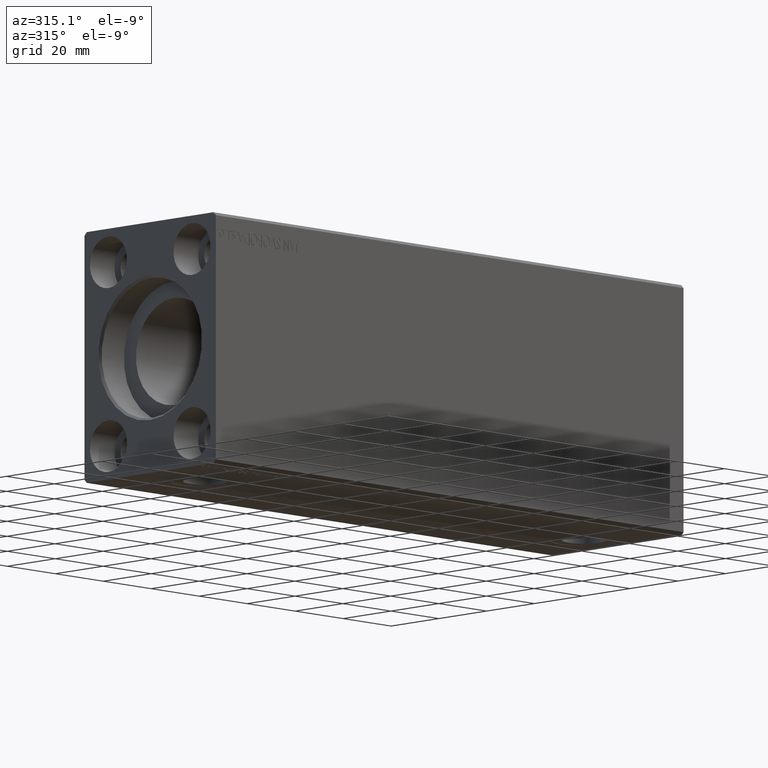
[diagram: clean part render]
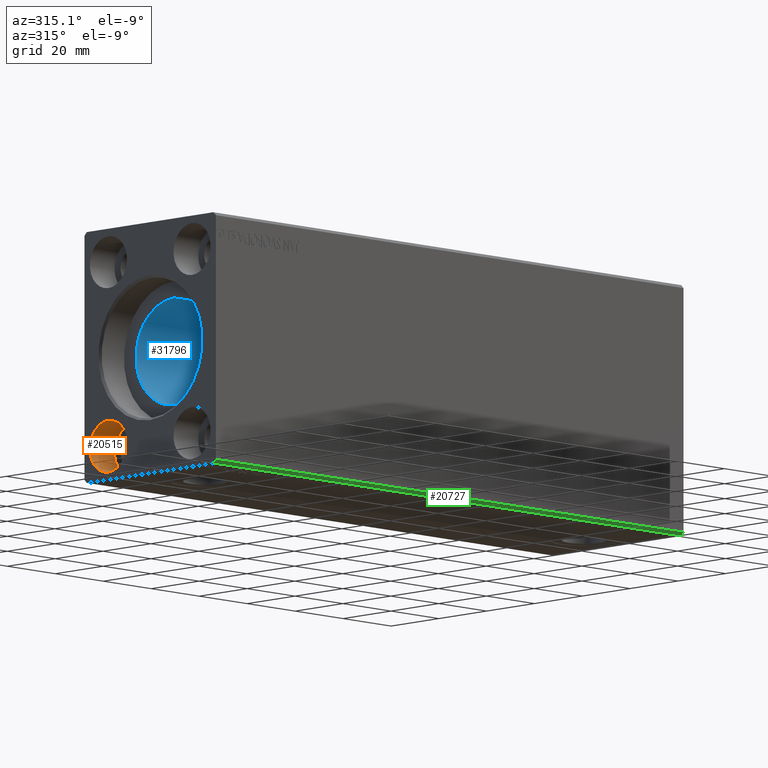
[diagram: same view with three faces highlighted in distinct colors, each labeled with its STEP entity id]
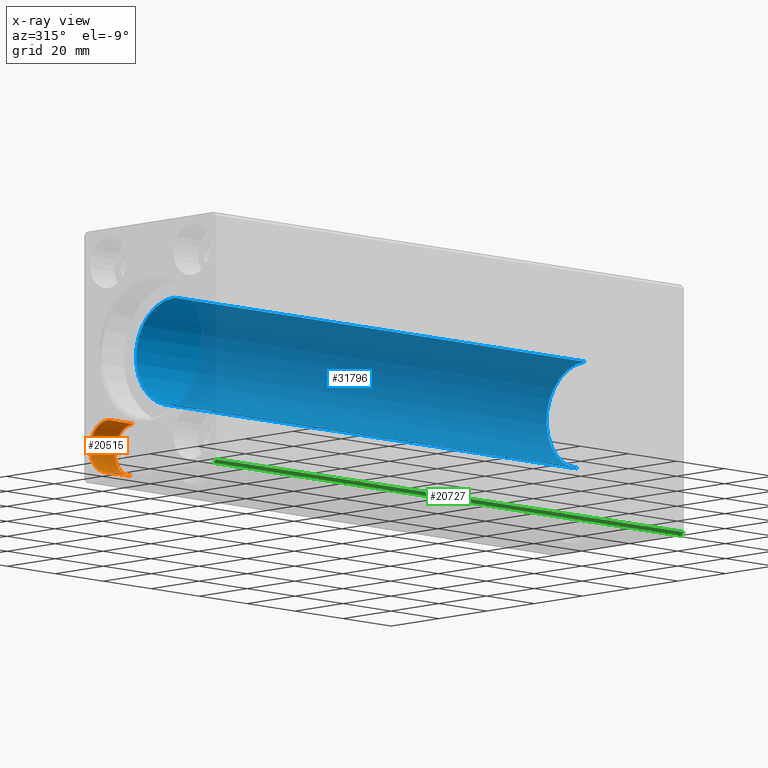
[diagram: x-ray of the same camera — body ghosted, the three highlighted faces saturated]
A machine part, auxiliary view with three faces highlighted in distinct colors.
The next image is the same camera in x-ray (body ghosted, the three faces saturated) — at least one of them is partly hidden behind the body in this view.
Their STEP definitions:

[orange] entity #20515 — the highlighted cylindrical surface (edge-blend (fillet) strip) has radius 7.75 mm, axis along (-1, -0, -0).
#143 = EDGE_LOOP ( 'NONE', ( #38138, #2351, #14078, #18632 ) ) ;
#2351 = ORIENTED_EDGE ( 'NONE', *, *, #10108, .F. ) ;
#2482 = CYLINDRICAL_SURFACE ( 'NONE', #7221, 7.750000000000003553 ) ;
#2798 = EDGE_CURVE ( 'NONE', #13599, #19383, #11059, .T. ) ;
#2849 = EDGE_CURVE ( 'NONE', #6873, #13599, #19694, .T. ) ;
#3434 = EDGE_CURVE ( 'NONE', #12572, #19383, #5357, .T. ) ;
#5357 = LINE ( 'NONE', #18499, #42046 ) ;
#6873 = VERTEX_POINT ( 'NONE', #30602 ) ;
#7221 = AXIS2_PLACEMENT_3D ( 'NONE', #8934, #35232, #28770 ) ;
#7436 = CARTESIAN_POINT ( 'NONE',  ( 0.000000000000000000, 17.50000000000000000, -27.50000000000000000 ) ) ;
#8271 = AXIS2_PLACEMENT_3D ( 'NONE', #7436, #33719, #17356 ) ;
#8934 = CARTESIAN_POINT ( 'NONE',  ( 10.33000000000000007, 17.50000000000000000, -27.50000000000000000 ) ) ;
#9764 = DIRECTION ( 'NONE',  ( -1.000000000000000000, -0.000000000000000000, -0.000000000000000000 ) ) ;
#10108 = EDGE_CURVE ( 'NONE', #6873, #12572, #24857, .T. ) ;
#10412 = CARTESIAN_POINT ( 'NONE',  ( 10.33000000000000007, 17.50000000000000000, -27.50000000000000000 ) ) ;
#11059 = CIRCLE ( 'NONE', #8271, 7.750000000000003553 ) ;
#12572 = VERTEX_POINT ( 'NONE', #23815 ) ;
#13599 = VERTEX_POINT ( 'NONE', #19325 ) ;
#14078 = ORIENTED_EDGE ( 'NONE', *, *, #2849, .T. ) ;
#17356 = DIRECTION ( 'NONE',  ( 0.000000000000000000, 0.000000000000000000, 1.000000000000000000 ) ) ;
#18499 = CARTESIAN_POINT ( 'NONE',  ( 10.33000000000000007, 17.50000000000000000, -35.25000000000000000 ) ) ;
#18632 = ORIENTED_EDGE ( 'NONE', *, *, #2798, .T. ) ;
#19325 = CARTESIAN_POINT ( 'NONE',  ( 0.000000000000000000, 17.50000000000000000, -19.74999999999999645 ) ) ;
#19383 = VERTEX_POINT ( 'NONE', #21813 ) ;
#19694 = LINE ( 'NONE', #33039, #39281 ) ;
#20515 = ADVANCED_FACE ( 'NONE', ( #24895 ), #2482, .F. ) ;
#20770 = AXIS2_PLACEMENT_3D ( 'NONE', #10412, #32842, #23571 ) ;
#21813 = CARTESIAN_POINT ( 'NONE',  ( 0.000000000000000000, 17.50000000000000000, -35.25000000000000000 ) ) ;
#23571 = DIRECTION ( 'NONE',  ( 0.000000000000000000, 0.000000000000000000, 1.000000000000000000 ) ) ;
#23815 = CARTESIAN_POINT ( 'NONE',  ( 10.33000000000000007, 17.50000000000000000, -35.25000000000000000 ) ) ;
#24857 = CIRCLE ( 'NONE', #20770, 7.750000000000003553 ) ;
#24895 = FACE_OUTER_BOUND ( 'NONE', #143, .T. ) ;
#28770 = DIRECTION ( 'NONE',  ( 0.000000000000000000, 0.000000000000000000, 1.000000000000000000 ) ) ;
#30602 = CARTESIAN_POINT ( 'NONE',  ( 10.33000000000000007, 17.50000000000000000, -19.74999999999999645 ) ) ;
#31641 = DIRECTION ( 'NONE',  ( -1.000000000000000000, -0.000000000000000000, -0.000000000000000000 ) ) ;
#32842 = DIRECTION ( 'NONE',  ( -1.000000000000000000, 0.000000000000000000, 0.000000000000000000 ) ) ;
#33039 = CARTESIAN_POINT ( 'NONE',  ( 10.33000000000000007, 17.50000000000000000, -19.74999999999999645 ) ) ;
#33719 = DIRECTION ( 'NONE',  ( -1.000000000000000000, 0.000000000000000000, 0.000000000000000000 ) ) ;
#35232 = DIRECTION ( 'NONE',  ( -1.000000000000000000, -0.000000000000000000, -0.000000000000000000 ) ) ;
#38138 = ORIENTED_EDGE ( 'NONE', *, *, #3434, .F. ) ;
#39281 = VECTOR ( 'NONE', #9764, 1000.000000000000000 ) ;
#42046 = VECTOR ( 'NONE', #31641, 1000.000000000000000 ) ;

[blue] entity #31796 — the highlighted cylindrical surface (partial cylindrical patch) has radius 16 mm, axis along (-1, -0, -0).
#204 = ORIENTED_EDGE ( 'NONE', *, *, #18325, .T. ) ;
#758 = VERTEX_POINT ( 'NONE', #5611 ) ;
#1371 = CARTESIAN_POINT ( 'NONE',  ( 20.54529199024537789, 1.250171241089528928, -15.95169574138015278 ) ) ;
#1505 = EDGE_CURVE ( 'NONE', #14035, #6129, #15142, .T. ) ;
#2585 = CARTESIAN_POINT ( 'NONE',  ( 178.2643523021425267, 0.3237335850403372794, -15.99751506009604007 ) ) ;
#2662 = VERTEX_POINT ( 'NONE', #26414 ) ;
#2797 = CARTESIAN_POINT ( 'NONE',  ( 178.8030230027347045, 1.662044306363392954, -15.91393043707981647 ) ) ;
#2923 = CARTESIAN_POINT ( 'NONE',  ( 25.67843830749630740, 0.6438297815899759469, -15.98783114994251697 ) ) ;
#3460 = DIRECTION ( 'NONE',  ( -1.000000000000000000, -0.000000000000000000, -0.000000000000000000 ) ) ;
#4185 = CARTESIAN_POINT ( 'NONE',  ( 20.36400824168861234, 0.8002234119869107154, -15.98070334047259777 ) ) ;
#4609 = CARTESIAN_POINT ( 'NONE',  ( 20.25000000000000000, 0.1628529246558463039, -16.00000000000000000 ) ) ;
#5611 = CARTESIAN_POINT ( 'NONE',  ( 20.25000000000000000, 1.952197298178576320E-15, -16.00000000000000000 ) ) ;
#5822 = CARTESIAN_POINT ( 'NONE',  ( 178.2500000000000000, 0.1628529246558443611, -15.99999999999999645 ) ) ;
#6129 = VERTEX_POINT ( 'NONE', #38700 ) ;
#6443 = LINE ( 'NONE', #13119, #34561 ) ;
#6630 = CARTESIAN_POINT ( 'NONE',  ( 20.32103554224154607, 0.6416550435731651625, -15.98791951246752241 ) ) ;
#6699 = LINE ( 'NONE', #16401, #41325 ) ;
#6884 = DIRECTION ( 'NONE',  ( -1.000000000000000000, -0.000000000000000000, -0.000000000000000000 ) ) ;
#7878 = DIRECTION ( 'NONE',  ( 0.000000000000000000, 0.000000000000000000, 1.000000000000000000 ) ) ;
#8889 = CARTESIAN_POINT ( 'NONE',  ( 181.1999999999999886, 0.000000000000000000, 0.000000000000000000 ) ) ;
#9859 = CARTESIAN_POINT ( 'NONE',  ( 20.70828422114123057, 1.528580496451064752, -15.92742812959714982 ) ) ;
#10116 = CARTESIAN_POINT ( 'NONE',  ( 181.1999999999999886, 0.000000000000000000, 0.000000000000000000 ) ) ;
#10167 = CARTESIAN_POINT ( 'NONE',  ( 181.1999999999999886, 1.786057109949259036, -15.89999999999998970 ) ) ;
#11883 = AXIS2_PLACEMENT_3D ( 'NONE', #33537, #37815, #7878 ) ;
#12066 = CARTESIAN_POINT ( 'NONE',  ( 178.7082842211412412, 1.528580496451069415, -15.92742812959714982 ) ) ;
#12099 = EDGE_CURVE ( 'NONE', #22968, #28517, #22582, .T. ) ;
#13119 = CARTESIAN_POINT ( 'NONE',  ( 181.1999999999999886, 1.959434878635765131E-15, -16.00000000000000000 ) ) ;
#14035 = VERTEX_POINT ( 'NONE', #36625 ) ;
#14449 = EDGE_CURVE ( 'NONE', #2662, #23084, #41484, .T. ) ;
#14519 = CARTESIAN_POINT ( 'NONE',  ( 20.80302300273467964, 1.662044306363391177, -15.91393043707981292 ) ) ;
#14545 = CARTESIAN_POINT ( 'NONE',  ( 20.90894763336742912, 1.786057109949259036, -15.89999999999998970 ) ) ;
#15142 = CIRCLE ( 'NONE', #40631, 16.00000000000000000 ) ;
#16077 = CARTESIAN_POINT ( 'NONE',  ( 25.63617786229477957, 0.7997846173174859574, -15.98073294566550473 ) ) ;
#16401 = CARTESIAN_POINT ( 'NONE',  ( 181.1999999999999886, 1.959434878635765131E-15, -16.00000000000000000 ) ) ;
#18096 = ORIENTED_EDGE ( 'NONE', *, *, #32173, .F. ) ;
#18325 = EDGE_CURVE ( 'NONE', #38095, #39681, #42526, .T. ) ;
#18758 = CARTESIAN_POINT ( 'NONE',  ( 178.9089476333674327, 1.786057109949259036, -15.89999999999998970 ) ) ;
#19461 = DIRECTION ( 'NONE',  ( -1.000000000000000000, -0.000000000000000000, -0.000000000000000000 ) ) ;
#20035 = DIRECTION ( 'NONE',  ( 0.000000000000000000, 0.000000000000000000, 1.000000000000000000 ) ) ;
#20407 = VECTOR ( 'NONE', #33985, 1000.000000000000000 ) ;
#21051 = LINE ( 'NONE', #34390, #20407 ) ;
#21195 = EDGE_CURVE ( 'NONE', #14035, #2662, #21051, .T. ) ;
#21564 = EDGE_LOOP ( 'NONE', ( #21942, #204, #18096, #22187, #41128, #28436, #32856, #39837, #30771, #42641 ) ) ;
#21855 = EDGE_CURVE ( 'NONE', #758, #28517, #41855, .T. ) ;
#21942 = ORIENTED_EDGE ( 'NONE', *, *, #35174, .F. ) ;
#22187 = ORIENTED_EDGE ( 'NONE', *, *, #1505, .F. ) ;
#22582 = LINE ( 'NONE', #38759, #29747 ) ;
#22737 = CARTESIAN_POINT ( 'NONE',  ( 25.73536268302067853, 0.3260974502564771282, -15.99746611559688780 ) ) ;
#22968 = VERTEX_POINT ( 'NONE', #31523 ) ;
#23084 = VERTEX_POINT ( 'NONE', #42272 ) ;
#24002 = CARTESIAN_POINT ( 'NONE',  ( 20.25000000000000000, 1.952197298178576320E-15, -16.00000000000000000 ) ) ;
#25112 = CARTESIAN_POINT ( 'NONE',  ( 25.09105236663257088, 1.786057109949259036, -15.89999999999998970 ) ) ;
#26414 = CARTESIAN_POINT ( 'NONE',  ( 10.00000000000000888, 0.000000000000000000, 16.00000000000000000 ) ) ;
#26497 = FACE_OUTER_BOUND ( 'NONE', #21564, .T. ) ;
#27660 = CARTESIAN_POINT ( 'NONE',  ( 20.90894763336742912, 1.786057109949259036, -15.89999999999998970 ) ) ;
#28296 = DIRECTION ( 'NONE',  ( 0.000000000000000000, 0.000000000000000000, 1.000000000000000000 ) ) ;
#28436 = ORIENTED_EDGE ( 'NONE', *, *, #14449, .T. ) ;
#28517 = VERTEX_POINT ( 'NONE', #14545 ) ;
#28991 = CARTESIAN_POINT ( 'NONE',  ( 25.30299467954352011, 1.537922561208759253, -15.92787311163533914 ) ) ;
#29106 = CARTESIAN_POINT ( 'NONE',  ( 178.3210355422414750, 0.6416550435731682711, -15.98791951246751886 ) ) ;
#29220 = CARTESIAN_POINT ( 'NONE',  ( 25.75000000000000355, 0.1629275007895856497, -16.00000000000000000 ) ) ;
#29659 = EDGE_CURVE ( 'NONE', #758, #23084, #6699, .T. ) ;
#29684 = VECTOR ( 'NONE', #19461, 1000.000000000000000 ) ;
#29747 = VECTOR ( 'NONE', #35300, 1000.000000000000000 ) ;
#30771 = ORIENTED_EDGE ( 'NONE', *, *, #12099, .F. ) ;
#31463 = CARTESIAN_POINT ( 'NONE',  ( 178.4763581403533124, 1.104555034037125516, -15.96255602784426486 ) ) ;
#31523 = CARTESIAN_POINT ( 'NONE',  ( 25.09105236663257088, 1.786057109949259036, -15.89999999999998970 ) ) ;
#31718 = AXIS2_PLACEMENT_3D ( 'NONE', #10116, #6884, #20035 ) ;
#31796 = ADVANCED_FACE ( 'NONE', ( #26497 ), #39655, .F. ) ;
#32173 = EDGE_CURVE ( 'NONE', #6129, #39681, #32365, .T. ) ;
#32365 = LINE ( 'NONE', #10167, #29684 ) ;
#32487 = EDGE_CURVE ( 'NONE', #22968, #42411, #37285, .T. ) ;
#32856 = ORIENTED_EDGE ( 'NONE', *, *, #29659, .F. ) ;
#33004 = CARTESIAN_POINT ( 'NONE',  ( 178.2500000000000000, 1.952197214168045357E-15, -16.00000000000000000 ) ) ;
#33537 = CARTESIAN_POINT ( 'NONE',  ( 10.00000000000000888, 0.000000000000000000, 0.000000000000000000 ) ) ;
#33927 = CARTESIAN_POINT ( 'NONE',  ( 20.26435230214253380, 0.3237335850403343929, -15.99751506009603652 ) ) ;
#33985 = DIRECTION ( 'NONE',  ( -1.000000000000000000, -0.000000000000000000, -0.000000000000000000 ) ) ;
#34390 = CARTESIAN_POINT ( 'NONE',  ( 181.1999999999999886, 0.000000000000000000, 16.00000000000000000 ) ) ;
#34561 = VECTOR ( 'NONE', #39428, 1000.000000000000000 ) ;
#35118 = CARTESIAN_POINT ( 'NONE',  ( 178.2500000000000000, 1.952197214168045357E-15, -16.00000000000000000 ) ) ;
#35174 = EDGE_CURVE ( 'NONE', #38095, #42411, #6443, .T. ) ;
#35300 = DIRECTION ( 'NONE',  ( -1.000000000000000000, -0.000000000000000000, -0.000000000000000000 ) ) ;
#35613 = DIRECTION ( 'NONE',  ( -1.000000000000000000, 0.000000000000000000, 0.000000000000000000 ) ) ;
#36625 = CARTESIAN_POINT ( 'NONE',  ( 181.1999999999999886, 0.000000000000000000, 16.00000000000000000 ) ) ;
#37285 = B_SPLINE_CURVE_WITH_KNOTS ( 'NONE', 3,
 ( #25112, #28991, #42155, #16077, #2923, #22737, #29220, #42372 ),
 .UNSPECIFIED., .F., .F.,
 ( 4, 2, 2, 4 ),
 ( 0.000000000000000000, 0.0009687575396886391509, 0.001453136309532957046, 0.001937515079377275266 ),
 .UNSPECIFIED. ) ;
#37815 = DIRECTION ( 'NONE',  ( -1.000000000000000000, 0.000000000000000000, 0.000000000000000000 ) ) ;
#38095 = VERTEX_POINT ( 'NONE', #33004 ) ;
#38152 = CARTESIAN_POINT ( 'NONE',  ( 178.3640082416886230, 0.8002234119869096052, -15.98070334047259777 ) ) ;
#38700 = CARTESIAN_POINT ( 'NONE',  ( 181.1999999999999886, 1.786057109949259036, -15.89999999999998970 ) ) ;
#38759 = CARTESIAN_POINT ( 'NONE',  ( 181.1999999999999886, 1.786057109949259036, -15.89999999999998970 ) ) ;
#39010 = CARTESIAN_POINT ( 'NONE',  ( 178.5452919902453743, 1.250171241089533591, -15.95169574138015633 ) ) ;
#39185 = CARTESIAN_POINT ( 'NONE',  ( 25.75000000000000000, 1.966672448372719994E-15, -16.00000000000000000 ) ) ;
#39428 = DIRECTION ( 'NONE',  ( -1.000000000000000000, -0.000000000000000000, -0.000000000000000000 ) ) ;
#39655 = CYLINDRICAL_SURFACE ( 'NONE', #31718, 16.00000000000000000 ) ;
#39681 = VERTEX_POINT ( 'NONE', #40683 ) ;
#39837 = ORIENTED_EDGE ( 'NONE', *, *, #21855, .T. ) ;
#40631 = AXIS2_PLACEMENT_3D ( 'NONE', #8889, #35613, #28296 ) ;
#40683 = CARTESIAN_POINT ( 'NONE',  ( 178.9089476333674327, 1.786057109949259036, -15.89999999999998970 ) ) ;
#40821 = CARTESIAN_POINT ( 'NONE',  ( 20.47635814035335855, 1.104555034037125516, -15.96255602784426841 ) ) ;
#41128 = ORIENTED_EDGE ( 'NONE', *, *, #21195, .T. ) ;
#41325 = VECTOR ( 'NONE', #3460, 1000.000000000000000 ) ;
#41484 = CIRCLE ( 'NONE', #11883, 16.00000000000000000 ) ;
#41855 = B_SPLINE_CURVE_WITH_KNOTS ( 'NONE', 3,
 ( #24002, #4609, #33927, #6630, #4185, #40821, #1371, #9859, #14519, #27660 ),
 .UNSPECIFIED., .F., .F.,
 ( 4, 2, 2, 2, 4 ),
 ( 0.001937515079377276567, 0.002421672136522722528, 0.002905829193668168706, 0.003389986250813614450, 0.003874143307959060194 ),
 .UNSPECIFIED. ) ;
#42155 = CARTESIAN_POINT ( 'NONE',  ( 25.46669777805105639, 1.258673386848676135, -15.95335904956524864 ) ) ;
#42272 = CARTESIAN_POINT ( 'NONE',  ( 10.00000000000000888, 1.959434878635765131E-15, -16.00000000000000000 ) ) ;
#42372 = CARTESIAN_POINT ( 'NONE',  ( 25.75000000000000000, 1.966672448372719994E-15, -16.00000000000000000 ) ) ;
#42411 = VERTEX_POINT ( 'NONE', #39185 ) ;
#42526 = B_SPLINE_CURVE_WITH_KNOTS ( 'NONE', 3,
 ( #35118, #5822, #2585, #29106, #38152, #31463, #39010, #12066, #2797, #18758 ),
 .UNSPECIFIED., .F., .F.,
 ( 4, 2, 2, 2, 4 ),
 ( 0.001937515079377271580, 0.002421672136522718191, 0.002905829193668164369, 0.003389986250813610980, 0.003874143307959057592 ),
 .UNSPECIFIED. ) ;
#42641 = ORIENTED_EDGE ( 'NONE', *, *, #32487, .T. ) ;

[green] entity #20727 — the highlighted planar face has unit normal (-0, 0.7071, 0.7071).
#374 = CARTESIAN_POINT ( 'NONE',  ( 195.0000000000000000, -27.50000000000000355, -36.49999999999998579 ) ) ;
#1918 = CARTESIAN_POINT ( 'NONE',  ( 195.0000000000000000, -26.50000000000000355, -37.49999999999999289 ) ) ;
#2383 = ORIENTED_EDGE ( 'NONE', *, *, #22655, .T. ) ;
#3033 = CARTESIAN_POINT ( 'NONE',  ( 0.000000000000000000, -27.50000000000000355, -36.49999999999998579 ) ) ;
#4450 = DIRECTION ( 'NONE',  ( 0.000000000000000000, 0.7071067811865451302, -0.7071067811865500152 ) ) ;
#5388 = VECTOR ( 'NONE', #27094, 1000.000000000000114 ) ;
#5841 = VERTEX_POINT ( 'NONE', #3033 ) ;
#5932 = AXIS2_PLACEMENT_3D ( 'NONE', #18973, #19411, #35122 ) ;
#10170 = VERTEX_POINT ( 'NONE', #28053 ) ;
#11058 = DIRECTION ( 'NONE',  ( -1.000000000000000000, -0.000000000000000000, -0.000000000000000000 ) ) ;
#11478 = LINE ( 'NONE', #37369, #25017 ) ;
#11613 = LINE ( 'NONE', #1918, #29655 ) ;
#13683 = CARTESIAN_POINT ( 'NONE',  ( 195.0000000000000000, -26.50000000000000355, -37.49999999999999289 ) ) ;
#13958 = CARTESIAN_POINT ( 'NONE',  ( 0.000000000000000000, -27.50000000000000355, -36.49999999999998579 ) ) ;
#14094 = CARTESIAN_POINT ( 'NONE',  ( 0.000000000000000000, -26.50000000000000355, -37.49999999999999289 ) ) ;
#16390 = PLANE ( 'NONE',  #5932 ) ;
#16941 = EDGE_CURVE ( 'NONE', #10170, #5841, #11478, .T. ) ;
#18973 = CARTESIAN_POINT ( 'NONE',  ( 195.0000000000000000, -27.50000000000000355, -36.49999999999998579 ) ) ;
#19411 = DIRECTION ( 'NONE',  ( -0.000000000000000000, 0.7071067811865499042, 0.7071067811865451302 ) ) ;
#20218 = LINE ( 'NONE', #13958, #5388 ) ;
#20409 = LINE ( 'NONE', #374, #30417 ) ;
#20727 = ADVANCED_FACE ( 'NONE', ( #28671 ), #16390, .F. ) ;
#22655 = EDGE_CURVE ( 'NONE', #5841, #31339, #20218, .T. ) ;
#25017 = VECTOR ( 'NONE', #11058, 1000.000000000000000 ) ;
#25569 = VERTEX_POINT ( 'NONE', #13683 ) ;
#27094 = DIRECTION ( 'NONE',  ( 0.000000000000000000, 0.7071067811865451302, -0.7071067811865500152 ) ) ;
#28050 = ORIENTED_EDGE ( 'NONE', *, *, #39249, .F. ) ;
#28053 = CARTESIAN_POINT ( 'NONE',  ( 195.0000000000000000, -27.50000000000000355, -36.49999999999998579 ) ) ;
#28671 = FACE_OUTER_BOUND ( 'NONE', #38600, .T. ) ;
#29655 = VECTOR ( 'NONE', #31441, 1000.000000000000000 ) ;
#29826 = EDGE_CURVE ( 'NONE', #25569, #31339, #11613, .T. ) ;
#30417 = VECTOR ( 'NONE', #4450, 1000.000000000000114 ) ;
#31339 = VERTEX_POINT ( 'NONE', #14094 ) ;
#31441 = DIRECTION ( 'NONE',  ( -1.000000000000000000, -0.000000000000000000, -0.000000000000000000 ) ) ;
#35122 = DIRECTION ( 'NONE',  ( 0.000000000000000000, -0.7071067811865451302, 0.7071067811865499042 ) ) ;
#37369 = CARTESIAN_POINT ( 'NONE',  ( 195.0000000000000000, -27.50000000000000355, -36.49999999999998579 ) ) ;
#38600 = EDGE_LOOP ( 'NONE', ( #2383, #40104, #28050, #40413 ) ) ;
#39249 = EDGE_CURVE ( 'NONE', #10170, #25569, #20409, .T. ) ;
#40104 = ORIENTED_EDGE ( 'NONE', *, *, #29826, .F. ) ;
#40413 = ORIENTED_EDGE ( 'NONE', *, *, #16941, .T. ) ;